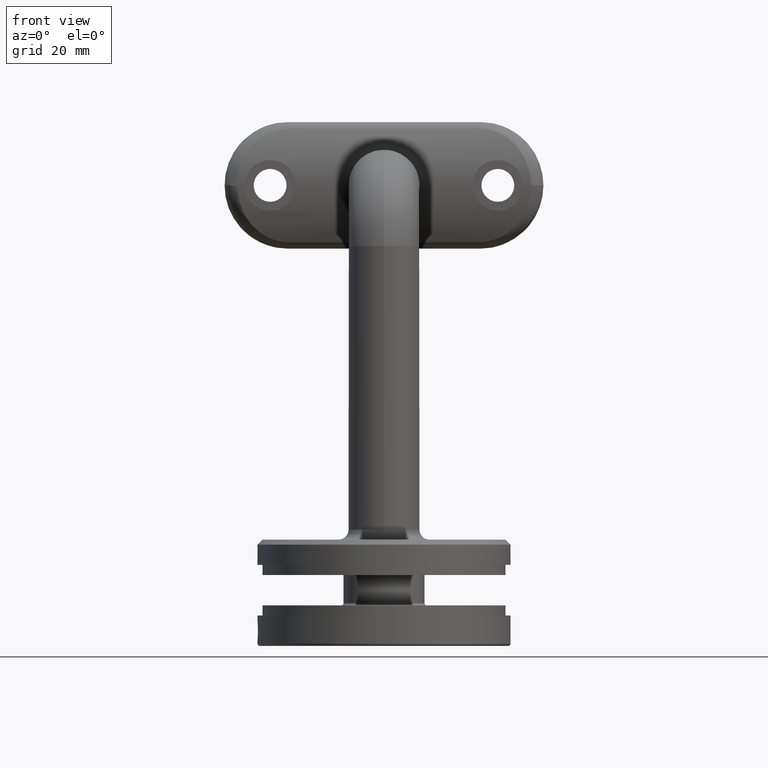
[diagram: clean part render]
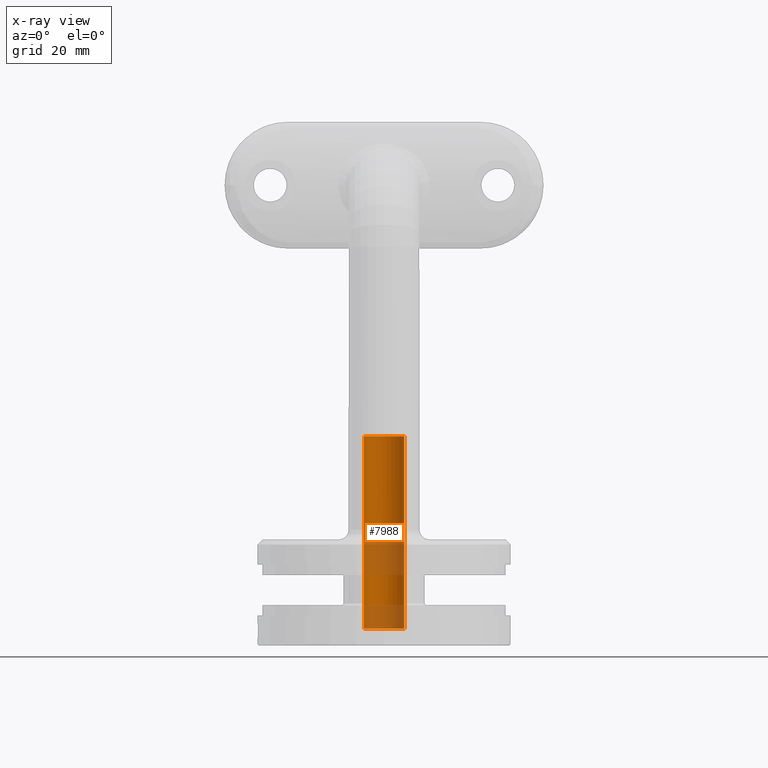
[diagram: x-ray — body ghosted, one internal face saturated and labeled with its STEP entity id]
A machine part, front view, then the same camera in x-ray: the body is ghosted and one INTERNAL B-rep face — a face not visible from any outside direction — is saturated and labeled: STEP entity #7988.
In plain terms, the highlighted cylindrical surface (edge-blend (fillet) strip) has radius 4 mm, axis along (-0, 0, -1).
Its self-contained STEP definition (entity closure, byte-faithful):
#308 = EDGE_LOOP ( 'NONE', ( #4711, #3642, #11832, #10386, #8727 ) ) ;
#812 = VERTEX_POINT ( 'NONE', #19290 ) ;
#814 = DIRECTION ( 'NONE',  ( -1.000000000000000000, -0.000000000000000000, -0.000000000000000000 ) ) ;
#1283 = DIRECTION ( 'NONE',  ( 0.000000000000000000, 3.408467191824382650E-33, -1.000000000000000000 ) ) ;
#1431 = EDGE_CURVE ( 'NONE', #14693, #3207, #17501, .T. ) ;
#2188 = DIRECTION ( 'NONE',  ( -5.421010862427522170E-17, -1.000000000000000000, 1.423297954274842050E-33 ) ) ;
#3207 = VERTEX_POINT ( 'NONE', #19934 ) ;
#3642 = ORIENTED_EDGE ( 'NONE', *, *, #18546, .T. ) ;
#3873 = VERTEX_POINT ( 'NONE', #7084 ) ;
#4711 = ORIENTED_EDGE ( 'NONE', *, *, #15890, .T. ) ;
#4725 = CYLINDRICAL_SURFACE ( 'NONE', #17164, 4.000000000000000000 ) ;
#5027 = VECTOR ( 'NONE', #9526, 1000.000000000000000 ) ;
#5163 = CARTESIAN_POINT ( 'NONE',  ( 40.00000000000000000, -1.078520768856852078E-29, -7.703719777548943412E-31 ) ) ;
#7084 = CARTESIAN_POINT ( 'NONE',  ( 1.399999999999984590, -1.079724475072094100E-29, 4.000000000000000000 ) ) ;
#7510 = AXIS2_PLACEMENT_3D ( 'NONE', #9615, #814, #1283 ) ;
#7531 = VERTEX_POINT ( 'NONE', #13068 ) ;
#7988 = ADVANCED_FACE ( 'NONE', ( #17129 ), #4725, .T. ) ;
#8148 = CARTESIAN_POINT ( 'NONE',  ( 1.399999999999984590, 4.000000000000000000, 4.774841126307651599E-31 ) ) ;
#8214 = AXIS2_PLACEMENT_3D ( 'NONE', #15232, #11747, #8239 ) ;
#8239 = DIRECTION ( 'NONE',  ( -5.421010862427522170E-17, -1.000000000000000000, 1.423297954274842050E-33 ) ) ;
#8332 = LINE ( 'NONE', #9163, #11616 ) ;
#8727 = ORIENTED_EDGE ( 'NONE', *, *, #15749, .F. ) ;
#9163 = CARTESIAN_POINT ( 'NONE',  ( 40.00000000000000000, -1.079884155733581883E-29, 4.000000000000000000 ) ) ;
#9526 = DIRECTION ( 'NONE',  ( -1.000000000000000000, 0.000000000000000000, 0.000000000000000000 ) ) ;
#9615 = CARTESIAN_POINT ( 'NONE',  ( 39.39999999999999858, -8.474091755303837753E-30, -7.703719777548943412E-31 ) ) ;
#10121 = DIRECTION ( 'NONE',  ( -1.000000000000000000, 0.000000000000000000, 0.000000000000000000 ) ) ;
#10386 = ORIENTED_EDGE ( 'NONE', *, *, #17504, .F. ) ;
#11616 = VECTOR ( 'NONE', #14377, 1000.000000000000000 ) ;
#11747 = DIRECTION ( 'NONE',  ( -1.000000000000000000, 3.242134472605239342E-17, -3.451266460341926649E-31 ) ) ;
#11832 = ORIENTED_EDGE ( 'NONE', *, *, #1431, .F. ) ;
#12620 = DIRECTION ( 'NONE',  ( -1.000000000000000000, 3.242134472605239342E-17, -3.451266460341926649E-31 ) ) ;
#13068 = CARTESIAN_POINT ( 'NONE',  ( 39.39999999999999858, -1.079884155733581883E-29, 4.000000000000000000 ) ) ;
#13451 = CIRCLE ( 'NONE', #15673, 4.000000000000000000 ) ;
#14377 = DIRECTION ( 'NONE',  ( -1.000000000000000000, 0.000000000000000000, 0.000000000000000000 ) ) ;
#14693 = VERTEX_POINT ( 'NONE', #8148 ) ;
#15069 = LINE ( 'NONE', #18339, #5027 ) ;
#15232 = CARTESIAN_POINT ( 'NONE',  ( 1.399999999999984590, -4.538988261646966039E-17, -7.703719777548943412E-31 ) ) ;
#15673 = AXIS2_PLACEMENT_3D ( 'NONE', #21332, #12620, #2188 ) ;
#15749 = EDGE_CURVE ( 'NONE', #7531, #3873, #8332, .T. ) ;
#15890 = EDGE_CURVE ( 'NONE', #7531, #812, #17851, .T. ) ;
#17110 = DIRECTION ( 'NONE',  ( 0.000000000000000000, -3.408467191824382650E-33, 1.000000000000000000 ) ) ;
#17129 = FACE_OUTER_BOUND ( 'NONE', #308, .T. ) ;
#17164 = AXIS2_PLACEMENT_3D ( 'NONE', #5163, #10121, #17110 ) ;
#17501 = CIRCLE ( 'NONE', #8214, 4.000000000000000000 ) ;
#17504 = EDGE_CURVE ( 'NONE', #3873, #14693, #13451, .T. ) ;
#17851 = CIRCLE ( 'NONE', #7510, 4.000000000000000000 ) ;
#18339 = CARTESIAN_POINT ( 'NONE',  ( 40.00000000000000000, 4.898587196589304360E-16, -4.000000000000000000 ) ) ;
#18546 = EDGE_CURVE ( 'NONE', #812, #3207, #15069, .T. ) ;
#19290 = CARTESIAN_POINT ( 'NONE',  ( 39.39999999999999858, 4.898587196589304360E-16, -4.000000000000000000 ) ) ;
#19934 = CARTESIAN_POINT ( 'NONE',  ( 1.399999999999984590, 4.898587196589304360E-16, -4.000000000000000000 ) ) ;
#21332 = CARTESIAN_POINT ( 'NONE',  ( 1.399999999999984590, -4.538988261646966039E-17, -7.703719777548943412E-31 ) ) ;